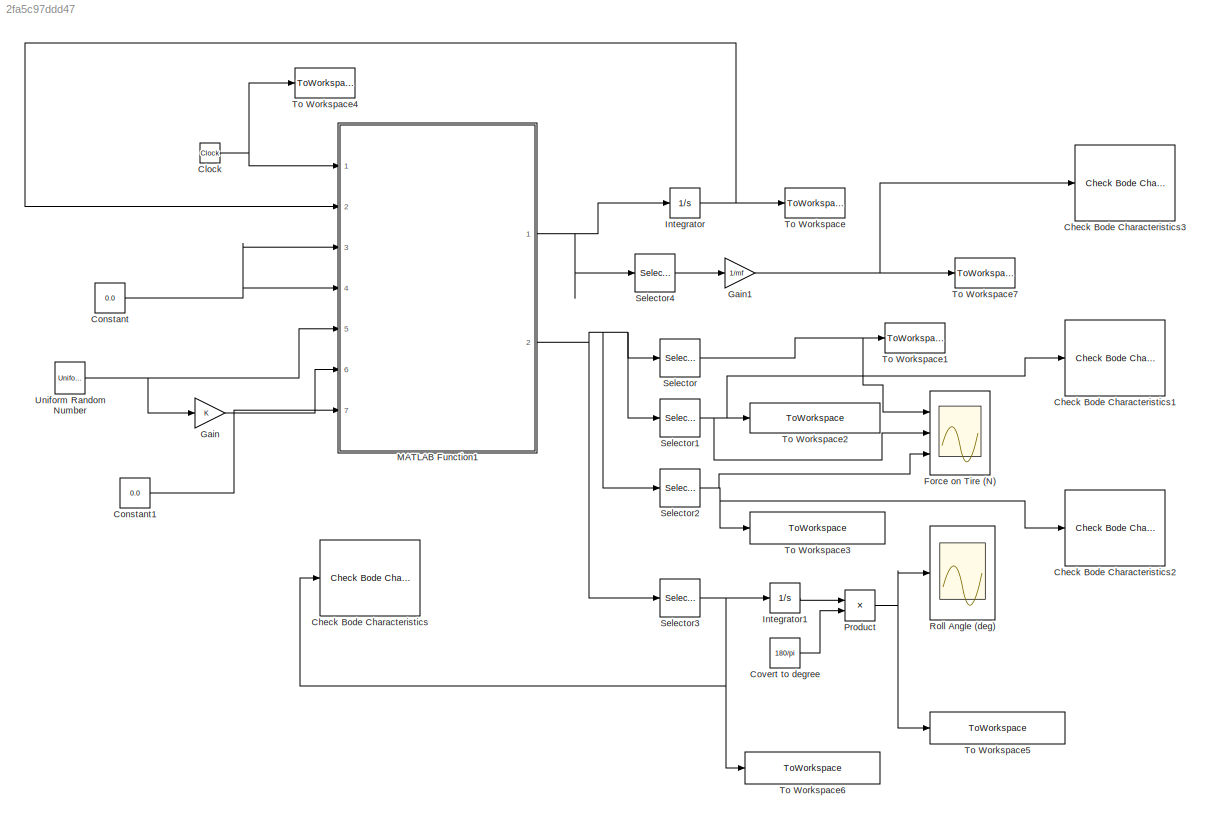
MODEL slx_2fa5c97ddd47
KIND model
CONFIG AbsTol = auto
CONFIG FixedStep = auto
CONFIG MaxStep = auto
CONFIG MinStep = auto
CONFIG RelTol = 1e-3
CONFIG SampleTimeConstraint = Unconstrained
CONFIG Solver = VariableStepAuto
CONFIG SolverMode = Auto
CONFIG SolverName = VariableStepAuto
CONFIG StartTime = 0.0
CONFIG StopTime = 5
BLOCK [Reference] Check Bode Characteristics  REF=slctrlblks/Model Verification/Check Bode 
Characteristics
  InstantiateOnLoad = on
  Ports = [1]
  SourceBlock = slctrlblks/Model Verification/Check Bode \nCharacteristics
  SourceType = Checks_Bode
BLOCK [Reference] Check Bode Characteristics1  REF=slctrlblks/Model Verification/Check Bode 
Characteristics
  InstantiateOnLoad = on
  Ports = [1]
  SourceBlock = slctrlblks/Model Verification/Check Bode \nCharacteristics
  SourceType = Checks_Bode
BLOCK [Reference] Check Bode Characteristics2  REF=slctrlblks/Model Verification/Check Bode 
Characteristics
  InstantiateOnLoad = on
  Ports = [1]
  SourceBlock = slctrlblks/Model Verification/Check Bode \nCharacteristics
  SourceType = Checks_Bode
BLOCK [Reference] Check Bode Characteristics3  REF=slctrlblks/Model Verification/Check Bode 
Characteristics
  InstantiateOnLoad = on
  Ports = [1]
  SourceBlock = slctrlblks/Model Verification/Check Bode \nCharacteristics
  SourceType = Checks_Bode
BLOCK [Clock] Clock
  Decimation = 20
BLOCK [Constant] Constant
  Value = 0.0
BLOCK [Constant] Constant1
  Value = 0.0
BLOCK [Constant] Covert to degree
  Value = 180/pi
BLOCK [Scope] Force on Tire (N)
  NumInputPorts = 3
  Ports = [3]
  ScopeSpecificationString = Simulink.scopes.TimeScopeBlockCfg('CurrentConfiguration', extmgr.ConfigurationSet(extmgr.Configuration('Core','General UI',true),extmgr.Configuration('Core','Source UI',true),extmgr.Configuration('Sources','WiredSimulink',true,'DataLoggingVariableName','ScopeData1'),extmgr.Configuration('Visuals','Time Domain',true,'SerializedDisplays',{struct('MinYLimReal','-218.51775','MaxYLimReal','1966.65975',...<+1477ch>
BLOCK [Gain] Gain
  OutDataTypeStr = Inherit: Inherit via internal rule
  ParamDataTypeStr = Inherit: Inherit via internal rule
  SaturateOnIntegerOverflow = off
BLOCK [Gain] Gain1
  Gain = 1/mf
  OutDataTypeStr = Inherit: Inherit via internal rule
  ParamDataTypeStr = Inherit: Inherit via internal rule
  SaturateOnIntegerOverflow = off
BLOCK [Integrator] Integrator
  InitialCondition = initial_3
  Ports = [1, 1]
BLOCK [Integrator] Integrator1
  Ports = [1, 1]
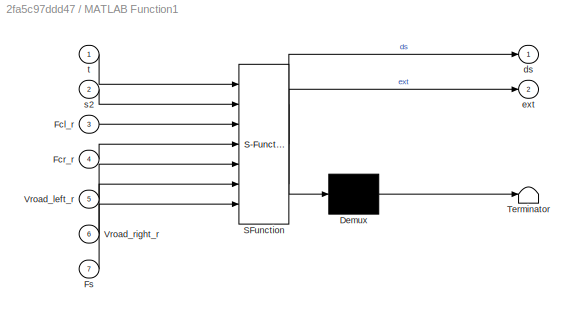
BLOCK [SubSystem] MATLAB Function1
  ErrorFcn = Stateflow.Translate.translate
  PermitHierarchicalResolution = ExplicitOnly
  Ports = [7, 2]
  RequestExecContextInheritance = off
  SFBlockType = MATLAB Function
  TreatAsAtomicUnit = on
  Variant = off
BLOCK [Demux] MATLAB Function1/ Demux 
  Outputs = 1
  Ports = [1, 1]
BLOCK [S-Function] MATLAB Function1/ SFunction 
  EnableBusSupport = on
  FunctionName = sf_sfun
  Parameters = a,b,g,hr,jr,k_springr,k_tire_l,k_tire_r,mr,mt,r_damperr
  PortCounts = [7 3]
  Ports = [7, 3]
  SFunctionDeploymentMode = off
  Tag = Stateflow S-Function Weight_transfer_sim 5
BLOCK [Terminator] MATLAB Function1/ Terminator 
BLOCK [Inport] MATLAB Function1/Fcl_r
  IconDisplay = Port number
  Port = 3
BLOCK [Inport] MATLAB Function1/Fcr_r
  IconDisplay = Port number
  Port = 4
BLOCK [Inport] MATLAB Function1/Fs
  IconDisplay = Port number
  Port = 7
BLOCK [Inport] MATLAB Function1/Vroad_left_r
  IconDisplay = Port number
  Port = 5
BLOCK [Inport] MATLAB Function1/Vroad_right_r
  IconDisplay = Port number
  Port = 6
BLOCK [Outport] MATLAB Function1/ds
  IconDisplay = Port number
BLOCK [Outport] MATLAB Function1/ext
  IconDisplay = Port number
  Port = 2
BLOCK [Inport] MATLAB Function1/s2
  IconDisplay = Port number
  Port = 2
BLOCK [Inport] MATLAB Function1/t
  IconDisplay = Port number
BLOCK [Product] Product
  InputSameDT = off
  OutDataTypeStr = Inherit: Inherit via internal rule
  Ports = [2, 1]
  RndMeth = Floor
  SaturateOnIntegerOverflow = off
BLOCK [Scope] Roll Angle (deg)
  Ports = [1]
  ScopeSpecificationString = Simulink.scopes.TimeScopeBlockCfg('CurrentConfiguration', extmgr.ConfigurationSet(extmgr.Configuration('Core','General UI',true),extmgr.Configuration('Core','Source UI',true),extmgr.Configuration('Sources','WiredSimulink',true,'DataLoggingVariableName','ScopeData1'),extmgr.Configuration('Visuals','Time Domain',true,'SerializedDisplays',{struct('MinYLimReal','-0.52733','MaxYLimReal','2.34778','YLab...<+1422ch>
BLOCK [Selector] Selector
  IndexOptions = Index vector (dialog)
  Indices = [1]
  InputPortWidth = 4
  OutputSizes = 1
  Ports = [1, 1]
BLOCK [Selector] Selector1
  IndexOptions = Index vector (dialog)
  Indices = [2]
  InputPortWidth = 4
  OutputSizes = 1
  Ports = [1, 1]
BLOCK [Selector] Selector2
  IndexOptions = Index vector (dialog)
  Indices = [3]
  InputPortWidth = 4
  OutputSizes = 1
  Ports = [1, 1]
BLOCK [Selector] Selector3
  IndexOptions = Index vector (dialog)
  Indices = [4]
  InputPortWidth = 4
  OutputSizes = 1
  Ports = [1, 1]
BLOCK [Selector] Selector4
  IndexOptions = Index vector (dialog)
  Indices = [2]
  InputPortWidth = 9
  OutputSizes = 1
  Ports = [1, 1]
BLOCK [ToWorkspace] To Workspace
  FixptAsFi = on
  MaxDataPoints = inf
  Ports = [1]
  SampleTime = -1
  Save2DSignal = 3-D array (concatenate along third dimension)
  SaveFormat = Timeseries
  VariableName = s
BLOCK [ToWorkspace] To Workspace1
  FixptAsFi = on
  MaxDataPoints = inf
  Ports = [1]
  SampleTime = -1
  Save2DSignal = 3-D array (concatenate along third dimension)
  SaveFormat = Timeseries
  VariableName = input_force
BLOCK [ToWorkspace] To Workspace2
  FixptAsFi = on
  MaxDataPoints = inf
  Ports = [1]
  SampleTime = -1
  Save2DSignal = 3-D array (concatenate along third dimension)
  SaveFormat = Timeseries
  VariableName = force_on_lefttire
BLOCK [ToWorkspace] To Workspace3
  FixptAsFi = on
  MaxDataPoints = inf
  Ports = [1]
  SampleTime = -1
  Save2DSignal = 3-D array (concatenate along third dimension)
  SaveFormat = Timeseries
  VariableName = force_on_righttire
BLOCK [ToWorkspace] To Workspace4
  FixptAsFi = on
  MaxDataPoints = inf
  Ports = [1]
  SampleTime = -1
  Save2DSignal = 3-D array (concatenate along third dimension)
  SaveFormat = Timeseries
  VariableName = t
BLOCK [ToWorkspace] To Workspace5
  FixptAsFi = on
  MaxDataPoints = inf
  Ports = [1]
  SampleTime = -1
  Save2DSignal = 3-D array (concatenate along third dimension)
  SaveFormat = Timeseries
  VariableName = roll_angle
BLOCK [ToWorkspace] To Workspace6
  FixptAsFi = on
  MaxDataPoints = inf
  Ports = [1]
  SampleTime = -1
  Save2DSignal = 3-D array (concatenate along third dimension)
  SaveFormat = Timeseries
  VariableName = roll_angular_velocity
BLOCK [ToWorkspace] To Workspace7
  FixptAsFi = on
  MaxDataPoints = inf
  Ports = [1]
  SampleTime = -1
  Save2DSignal = 3-D array (concatenate along third dimension)
  SaveFormat = Timeseries
  VariableName = heave_velocity
BLOCK [UniformRandomNumber] Uniform Random Number
  SampleTime = 0.01
NET Clock:1 -> MATLAB Function1:1, To Workspace4:1
LINE Constant1:1 -> MATLAB Function1:7
NET Constant:1 -> MATLAB Function1:3, MATLAB Function1:4
LINE Covert to degree:1 -> Product:2
NET Gain1:1 -> Check Bode Characteristics3:1, To Workspace7:1
LINE Gain:1 -> MATLAB Function1:6
LINE Integrator1:1 -> Product:1
NET Integrator:1 -> MATLAB Function1:2, To Workspace:1
NET MATLAB Function1:1 -> Integrator:1, Selector4:1
NET MATLAB Function1:2 -> Selector1:1, Selector2:1, Selector3:1, Selector:1
NET Product:1 -> Roll Angle (deg):1, To Workspace5:1
NET Selector1:1 -> Check Bode Characteristics1:1, Force on Tire (N):2, To Workspace2:1
NET Selector2:1 -> Check Bode Characteristics2:1, Force on Tire (N):3, To Workspace3:1
NET Selector3:1 -> Check Bode Characteristics:1, Integrator1:1, To Workspace6:1
LINE Selector4:1 -> Gain1:1
NET Selector:1 -> Force on Tire (N):1, To Workspace1:1
NET Uniform Random Number:1 -> Gain:1, MATLAB Function1:5
note: NET lines group one-source signal fan-out (src -> all destinations, sorted); 1:1 wires keep LINE
CHART MATLAB Function1 states=1 transitions=1
  STATE_LABEL 'eML_blk_kernel()'
  STATE_LABEL 'SCRIPT:\nfunction [ds,ext] = weight_tr_rear_fcn(t,s2,Fcl_r,Fcr_r,Vroad_left_r,Vroad_right_r,mr, g, jr, a, b, k_springr, r_damperr, k_tire_l, k_tire_r, hr, mt, Fs)\n\n%global m g j a b k_springf r_damperf k_tire_l k_tire_r F h mt \n\n% state variables\nPjr = s2(1); %roll momentum of sprung mass\nPvr = s2(2); %heave momentum of sprung mass\nPtlr = s2(3); %momentum of tire at left\nPtrr = s2(4); %momentum of ...<+1582ch>'
